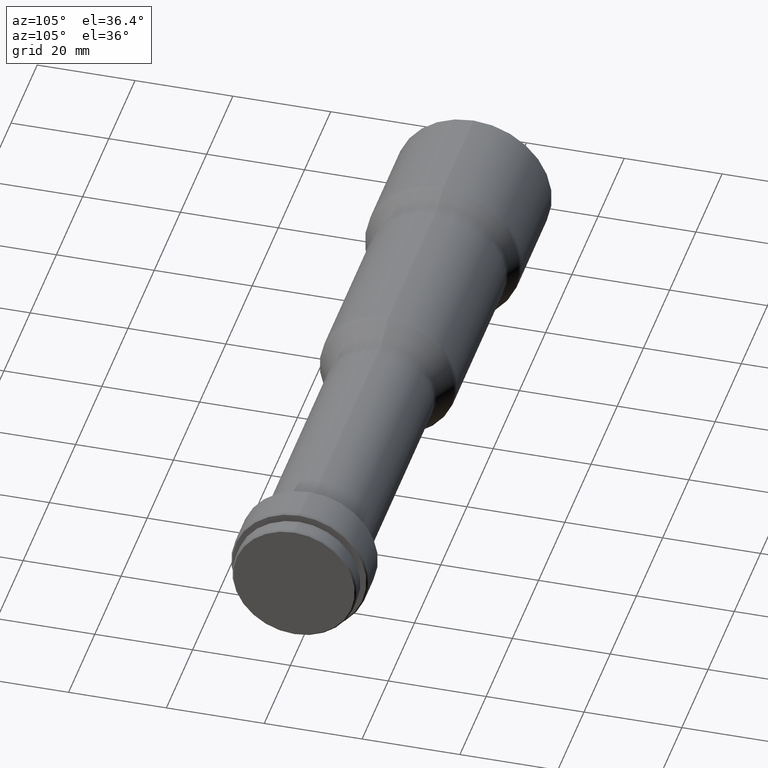
[diagram: clean part render]
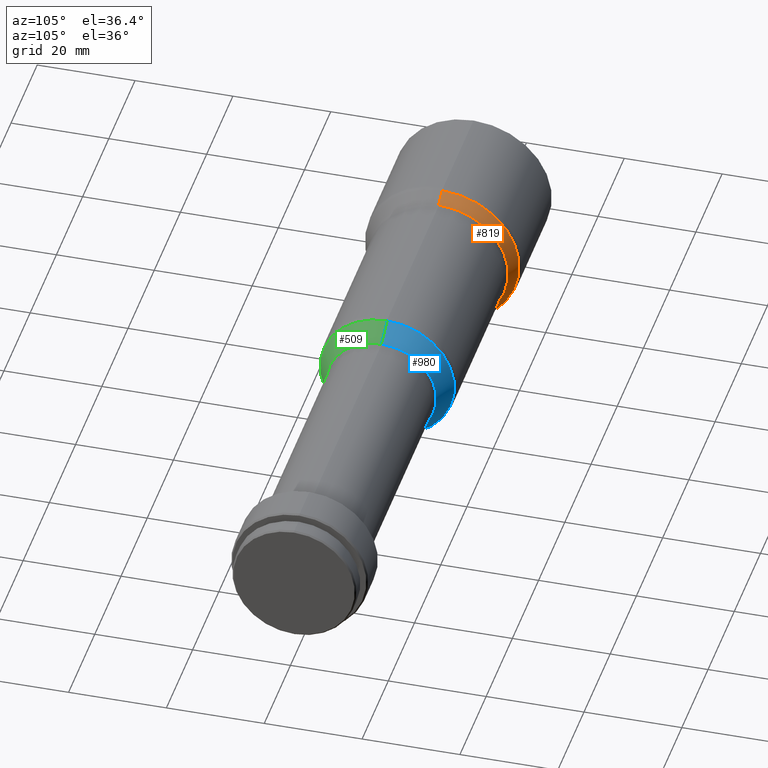
[diagram: same view with three faces highlighted in distinct colors, each labeled with its STEP entity id]
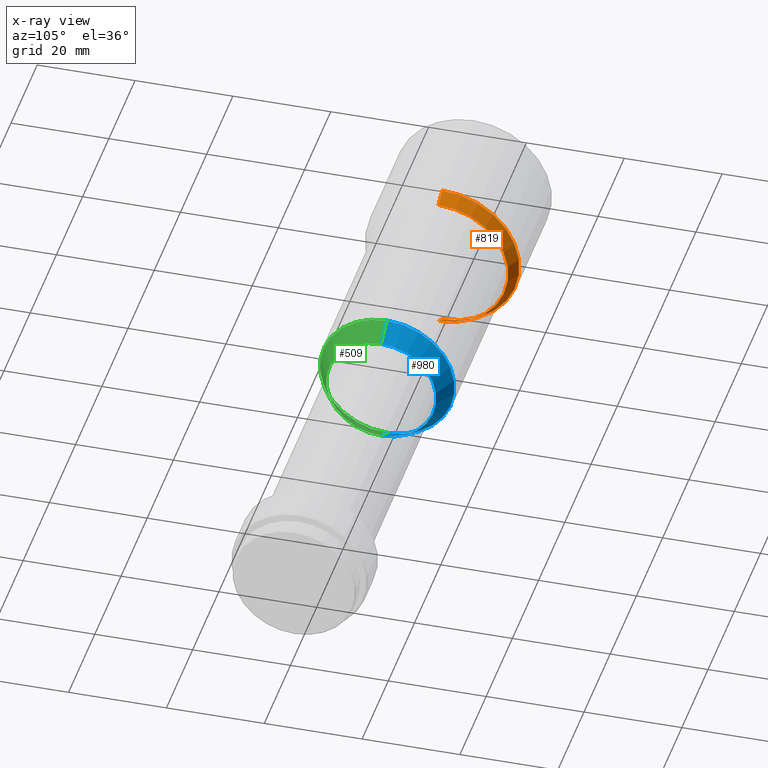
[diagram: x-ray of the same camera — body ghosted, the three highlighted faces saturated]
A machine part, auxiliary view with three faces highlighted in distinct colors.
The next image is the same camera in x-ray (body ghosted, the three faces saturated) — at least one of them is partly hidden behind the body in this view.
Their STEP definitions:

[orange] entity #819 — the highlighted conical surface has half-angle 28.393 deg.
#5 = VECTOR ( 'NONE', #205, 1000.000000000000100 ) ;
#9 = ORIENTED_EDGE ( 'NONE', *, *, #500, .F. ) ;
#18 = EDGE_CURVE ( 'NONE', #720, #371, #978, .T. ) ;
#37 = CARTESIAN_POINT ( 'NONE',  ( 24.14508589976833600, 0.0000000000000000000, 0.0000000000000000000 ) ) ;
#46 = DIRECTION ( 'NONE',  ( 0.0000000000000000000, 0.0000000000000000000, 1.000000000000000000 ) ) ;
#72 = LINE ( 'NONE', #634, #5 ) ;
#86 = CONICAL_SURFACE ( 'NONE', #230, 14.24058697284775100, 0.4955516734858291300 ) ;
#114 = DIRECTION ( 'NONE',  ( -1.000000000000000000, -0.0000000000000000000, -0.0000000000000000000 ) ) ;
#179 = ORIENTED_EDGE ( 'NONE', *, *, #345, .T. ) ;
#205 = DIRECTION ( 'NONE',  ( -0.8797065135761267300, 0.0000000000000000000, 0.4755170343654744900 ) ) ;
#210 = DIRECTION ( 'NONE',  ( 0.0000000000000000000, 0.0000000000000000000, 1.000000000000000000 ) ) ;
#219 = ORIENTED_EDGE ( 'NONE', *, *, #470, .F. ) ;
#230 = AXIS2_PLACEMENT_3D ( 'NONE', #478, #376, #46 ) ;
#274 = VECTOR ( 'NONE', #519, 1000.000000000000100 ) ;
#278 = DIRECTION ( 'NONE',  ( -1.000000000000000000, -0.0000000000000000000, -0.0000000000000000000 ) ) ;
#345 = EDGE_CURVE ( 'NONE', #371, #393, #708, .T. ) ;
#371 = VERTEX_POINT ( 'NONE', #926 ) ;
#376 = DIRECTION ( 'NONE',  ( -1.000000000000000000, -0.0000000000000000000, -0.0000000000000000000 ) ) ;
#393 = VERTEX_POINT ( 'NONE', #420 ) ;
#420 = CARTESIAN_POINT ( 'NONE',  ( 24.14508589976833600, 1.929971472014310800E-015, -15.75941302715225200 ) ) ;
#441 = EDGE_LOOP ( 'NONE', ( #1059, #179, #9, #219 ) ) ;
#470 = EDGE_CURVE ( 'NONE', #720, #782, #72, .T. ) ;
#478 = CARTESIAN_POINT ( 'NONE',  ( 26.95491410023165800, 0.0000000000000000000, 0.0000000000000000000 ) ) ;
#500 = EDGE_CURVE ( 'NONE', #782, #393, #512, .T. ) ;
#512 = CIRCLE ( 'NONE', #1077, 15.75941302715225200 ) ;
#519 = DIRECTION ( 'NONE',  ( -0.8797065135761267300, 5.823404140757203100E-017, -0.4755170343654744900 ) ) ;
#550 = FACE_OUTER_BOUND ( 'NONE', #441, .T. ) ;
#555 = CARTESIAN_POINT ( 'NONE',  ( 26.95491410023165800, 0.0000000000000000000, 0.0000000000000000000 ) ) ;
#590 = AXIS2_PLACEMENT_3D ( 'NONE', #555, #114, #717 ) ;
#634 = CARTESIAN_POINT ( 'NONE',  ( 26.95491410023165800, 0.0000000000000000000, 14.24058697284775100 ) ) ;
#708 = LINE ( 'NONE', #848, #274 ) ;
#717 = DIRECTION ( 'NONE',  ( 0.0000000000000000000, 0.0000000000000000000, 1.000000000000000000 ) ) ;
#720 = VERTEX_POINT ( 'NONE', #786 ) ;
#782 = VERTEX_POINT ( 'NONE', #792 ) ;
#786 = CARTESIAN_POINT ( 'NONE',  ( 26.95491410023165800, 0.0000000000000000000, 14.24058697284775100 ) ) ;
#792 = CARTESIAN_POINT ( 'NONE',  ( 24.14508589976833600, 0.0000000000000000000, 15.75941302715225200 ) ) ;
#819 = ADVANCED_FACE ( 'NONE', ( #550 ), #86, .T. ) ;
#848 = CARTESIAN_POINT ( 'NONE',  ( 26.95491410023165800, 1.743968925427749400E-015, -14.24058697284775100 ) ) ;
#926 = CARTESIAN_POINT ( 'NONE',  ( 26.95491410023165800, 1.743968925427749400E-015, -14.24058697284775100 ) ) ;
#978 = CIRCLE ( 'NONE', #590, 14.24058697284775100 ) ;
#1059 = ORIENTED_EDGE ( 'NONE', *, *, #18, .T. ) ;
#1077 = AXIS2_PLACEMENT_3D ( 'NONE', #37, #278, #210 ) ;

[blue] entity #980 — the highlighted conical surface has half-angle 29.055 deg.
#35 = ORIENTED_EDGE ( 'NONE', *, *, #258, .T. ) ;
#51 = DIRECTION ( 'NONE',  ( -1.000000000000000000, -0.0000000000000000000, -0.0000000000000000000 ) ) ;
#123 = CIRCLE ( 'NONE', #1014, 11.25168544775693000 ) ;
#149 = EDGE_LOOP ( 'NONE', ( #757, #35, #827, #256 ) ) ;
#165 = FACE_OUTER_BOUND ( 'NONE', #149, .T. ) ;
#253 = CARTESIAN_POINT ( 'NONE',  ( 66.15303380596248000, 0.0000000000000000000, 0.0000000000000000000 ) ) ;
#256 = ORIENTED_EDGE ( 'NONE', *, *, #828, .F. ) ;
#258 = EDGE_CURVE ( 'NONE', #1076, #1030, #538, .T. ) ;
#261 = CARTESIAN_POINT ( 'NONE',  ( 66.15303380596248000, 0.0000000000000000000, 13.74831455224307500 ) ) ;
#282 = DIRECTION ( 'NONE',  ( -1.000000000000000000, -0.0000000000000000000, -0.0000000000000000000 ) ) ;
#337 = VECTOR ( 'NONE', #723, 1000.000000000000100 ) ;
#342 = AXIS2_PLACEMENT_3D ( 'NONE', #817, #51, #1083 ) ;
#412 = DIRECTION ( 'NONE',  ( -0.8741572761215371500, 5.947410611964513200E-017, -0.4856429311786330000 ) ) ;
#417 = VERTEX_POINT ( 'NONE', #261 ) ;
#426 = CIRCLE ( 'NONE', #528, 13.74831455224307500 ) ;
#494 = EDGE_CURVE ( 'NONE', #626, #1076, #123, .T. ) ;
#510 = CARTESIAN_POINT ( 'NONE',  ( 70.64696619403753200, 1.377934056860837600E-015, -11.25168544775693000 ) ) ;
#528 = AXIS2_PLACEMENT_3D ( 'NONE', #253, #1087, #662 ) ;
#538 = LINE ( 'NONE', #510, #1041 ) ;
#544 = CARTESIAN_POINT ( 'NONE',  ( 70.64696619403753200, 0.0000000000000000000, 0.0000000000000000000 ) ) ;
#557 = EDGE_CURVE ( 'NONE', #417, #1030, #426, .T. ) ;
#619 = CARTESIAN_POINT ( 'NONE',  ( 70.64696619403753200, 1.377934056860837600E-015, -11.25168544775693000 ) ) ;
#626 = VERTEX_POINT ( 'NONE', #696 ) ;
#662 = DIRECTION ( 'NONE',  ( 0.0000000000000000000, 0.0000000000000000000, 1.000000000000000000 ) ) ;
#669 = CARTESIAN_POINT ( 'NONE',  ( 66.15303380596248000, 1.683682941007545800E-015, -13.74831455224307500 ) ) ;
#696 = CARTESIAN_POINT ( 'NONE',  ( 70.64696619403753200, 0.0000000000000000000, 11.25168544775693000 ) ) ;
#723 = DIRECTION ( 'NONE',  ( -0.8741572761215371500, 0.0000000000000000000, 0.4856429311786330000 ) ) ;
#757 = ORIENTED_EDGE ( 'NONE', *, *, #494, .T. ) ;
#812 = CONICAL_SURFACE ( 'NONE', #342, 11.25168544775693000, 0.5070985043923380600 ) ;
#817 = CARTESIAN_POINT ( 'NONE',  ( 70.64696619403753200, 0.0000000000000000000, 0.0000000000000000000 ) ) ;
#827 = ORIENTED_EDGE ( 'NONE', *, *, #557, .F. ) ;
#828 = EDGE_CURVE ( 'NONE', #626, #417, #991, .T. ) ;
#980 = ADVANCED_FACE ( 'NONE', ( #165 ), #812, .T. ) ;
#991 = LINE ( 'NONE', #1067, #337 ) ;
#1014 = AXIS2_PLACEMENT_3D ( 'NONE', #544, #282, #1048 ) ;
#1030 = VERTEX_POINT ( 'NONE', #669 ) ;
#1041 = VECTOR ( 'NONE', #412, 1000.000000000000100 ) ;
#1048 = DIRECTION ( 'NONE',  ( 0.0000000000000000000, 0.0000000000000000000, 1.000000000000000000 ) ) ;
#1067 = CARTESIAN_POINT ( 'NONE',  ( 70.64696619403753200, 0.0000000000000000000, 11.25168544775693000 ) ) ;
#1076 = VERTEX_POINT ( 'NONE', #619 ) ;
#1083 = DIRECTION ( 'NONE',  ( 0.0000000000000000000, 0.0000000000000000000, 1.000000000000000000 ) ) ;
#1087 = DIRECTION ( 'NONE',  ( -1.000000000000000000, -0.0000000000000000000, -0.0000000000000000000 ) ) ;

[green] entity #509 — the highlighted conical surface has half-angle 29.055 deg.
#11 = AXIS2_PLACEMENT_3D ( 'NONE', #363, #358, #369 ) ;
#24 = AXIS2_PLACEMENT_3D ( 'NONE', #954, #204, #454 ) ;
#41 = CONICAL_SURFACE ( 'NONE', #11, 11.25168544775693000, 0.5070985043923380600 ) ;
#128 = EDGE_LOOP ( 'NONE', ( #588, #885, #515, #759 ) ) ;
#155 = FACE_OUTER_BOUND ( 'NONE', #128, .T. ) ;
#204 = DIRECTION ( 'NONE',  ( -1.000000000000000000, -0.0000000000000000000, -0.0000000000000000000 ) ) ;
#223 = DIRECTION ( 'NONE',  ( -1.000000000000000000, -0.0000000000000000000, -0.0000000000000000000 ) ) ;
#258 = EDGE_CURVE ( 'NONE', #1076, #1030, #538, .T. ) ;
#261 = CARTESIAN_POINT ( 'NONE',  ( 66.15303380596248000, 0.0000000000000000000, 13.74831455224307500 ) ) ;
#294 = CARTESIAN_POINT ( 'NONE',  ( 66.15303380596248000, 0.0000000000000000000, 0.0000000000000000000 ) ) ;
#309 = CIRCLE ( 'NONE', #623, 13.74831455224307500 ) ;
#337 = VECTOR ( 'NONE', #723, 1000.000000000000100 ) ;
#358 = DIRECTION ( 'NONE',  ( -1.000000000000000000, -0.0000000000000000000, -0.0000000000000000000 ) ) ;
#363 = CARTESIAN_POINT ( 'NONE',  ( 70.64696619403753200, 0.0000000000000000000, 0.0000000000000000000 ) ) ;
#369 = DIRECTION ( 'NONE',  ( 0.0000000000000000000, 0.0000000000000000000, 1.000000000000000000 ) ) ;
#412 = DIRECTION ( 'NONE',  ( -0.8741572761215371500, 5.947410611964513200E-017, -0.4856429311786330000 ) ) ;
#417 = VERTEX_POINT ( 'NONE', #261 ) ;
#454 = DIRECTION ( 'NONE',  ( 0.0000000000000000000, 0.0000000000000000000, 1.000000000000000000 ) ) ;
#509 = ADVANCED_FACE ( 'NONE', ( #155 ), #41, .T. ) ;
#510 = CARTESIAN_POINT ( 'NONE',  ( 70.64696619403753200, 1.377934056860837600E-015, -11.25168544775693000 ) ) ;
#515 = ORIENTED_EDGE ( 'NONE', *, *, #828, .T. ) ;
#538 = LINE ( 'NONE', #510, #1041 ) ;
#588 = ORIENTED_EDGE ( 'NONE', *, *, #258, .F. ) ;
#619 = CARTESIAN_POINT ( 'NONE',  ( 70.64696619403753200, 1.377934056860837600E-015, -11.25168544775693000 ) ) ;
#623 = AXIS2_PLACEMENT_3D ( 'NONE', #294, #223, #976 ) ;
#626 = VERTEX_POINT ( 'NONE', #696 ) ;
#669 = CARTESIAN_POINT ( 'NONE',  ( 66.15303380596248000, 1.683682941007545800E-015, -13.74831455224307500 ) ) ;
#696 = CARTESIAN_POINT ( 'NONE',  ( 70.64696619403753200, 0.0000000000000000000, 11.25168544775693000 ) ) ;
#723 = DIRECTION ( 'NONE',  ( -0.8741572761215371500, 0.0000000000000000000, 0.4856429311786330000 ) ) ;
#759 = ORIENTED_EDGE ( 'NONE', *, *, #824, .F. ) ;
#769 = EDGE_CURVE ( 'NONE', #1076, #626, #977, .T. ) ;
#824 = EDGE_CURVE ( 'NONE', #1030, #417, #309, .T. ) ;
#828 = EDGE_CURVE ( 'NONE', #626, #417, #991, .T. ) ;
#885 = ORIENTED_EDGE ( 'NONE', *, *, #769, .T. ) ;
#954 = CARTESIAN_POINT ( 'NONE',  ( 70.64696619403753200, 0.0000000000000000000, 0.0000000000000000000 ) ) ;
#976 = DIRECTION ( 'NONE',  ( 0.0000000000000000000, 0.0000000000000000000, 1.000000000000000000 ) ) ;
#977 = CIRCLE ( 'NONE', #24, 11.25168544775693000 ) ;
#991 = LINE ( 'NONE', #1067, #337 ) ;
#1030 = VERTEX_POINT ( 'NONE', #669 ) ;
#1041 = VECTOR ( 'NONE', #412, 1000.000000000000100 ) ;
#1067 = CARTESIAN_POINT ( 'NONE',  ( 70.64696619403753200, 0.0000000000000000000, 11.25168544775693000 ) ) ;
#1076 = VERTEX_POINT ( 'NONE', #619 ) ;